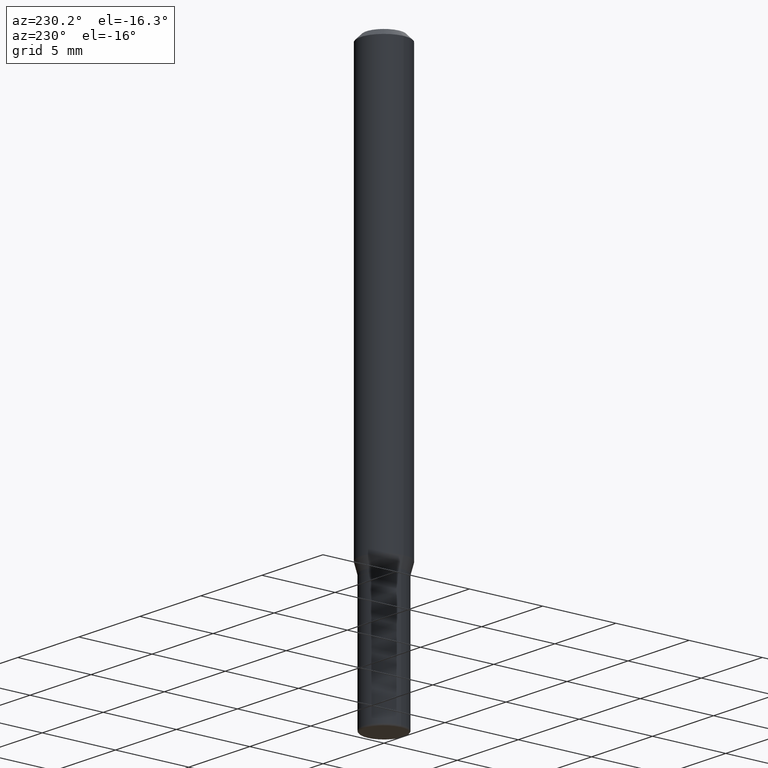
[diagram: clean part render]
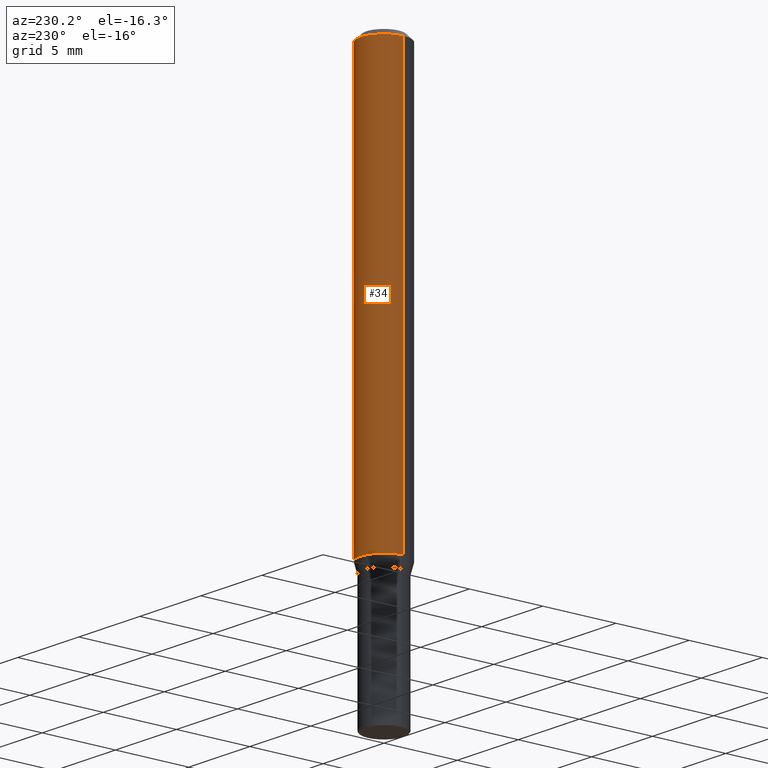
[diagram: same view with one face highlighted and labeled with its STEP entity id]
A machine part, auxiliary view. The second image highlights one B-rep face of the part: STEP entity #34.
In plain terms, the highlighted cylindrical surface (edge-blend (fillet) strip) has radius 1.5875 mm, axis along (-0, 0, 1).
Its self-contained STEP definition (entity closure, byte-faithful):
#31 = AXIS2_PLACEMENT_3D ( 'NONE', #90, #175, #291 ) ;
#34 = ADVANCED_FACE ( 'NONE', ( #248 ), #243, .T. ) ;
#35 = CARTESIAN_POINT ( 'NONE',  ( 0.000000000000000000, 0.000000000000000000, 0.000000000000000000 ) ) ;
#36 = DIRECTION ( 'NONE',  ( 1.000000000000000000, -6.982962677686266711E-15, 4.876176775795935793E-29 ) ) ;
#48 = EDGE_CURVE ( 'NONE', #176, #315, #196, .T. ) ;
#62 = ORIENTED_EDGE ( 'NONE', *, *, #409, .T. ) ;
#65 = EDGE_LOOP ( 'NONE', ( #62, #242, #357, #294 ) ) ;
#79 = DIRECTION ( 'NONE',  ( -2.445468806185136877E-29, 3.491481338843145188E-15, 1.000000000000000000 ) ) ;
#88 = CARTESIAN_POINT ( 'NONE',  ( 0.06250000000000000000, -4.888073874380378612E-16, -0.01499999999999970281 ) ) ;
#90 = CARTESIAN_POINT ( 'NONE',  ( 2.768294211427202327E-29, -3.952390459931242324E-15, -1.132009618943234264 ) ) ;
#110 = CARTESIAN_POINT ( 'NONE',  ( 0.06250000000000000000, -4.364351673553916694E-16, 3.047610484872459871E-30 ) ) ;
#116 = DIRECTION ( 'NONE',  ( -2.445468806185136597E-29, 3.491481338843145583E-15, 1.000000000000000000 ) ) ;
#121 = AXIS2_PLACEMENT_3D ( 'NONE', #35, #361, #36 ) ;
#158 = CARTESIAN_POINT ( 'NONE',  ( -0.06250000000000000000, -1.558292130156881494E-15, -0.01499999999999970281 ) ) ;
#175 = DIRECTION ( 'NONE',  ( -2.445468806185136597E-29, 3.491481338843145583E-15, 1.000000000000000000 ) ) ;
#176 = VERTEX_POINT ( 'NONE', #337 ) ;
#196 = LINE ( 'NONE', #280, #363 ) ;
#204 = VECTOR ( 'NONE', #459, 39.37007874015748143 ) ;
#211 = EDGE_CURVE ( 'NONE', #222, #425, #257, .T. ) ;
#214 = AXIS2_PLACEMENT_3D ( 'NONE', #312, #116, #278 ) ;
#222 = VERTEX_POINT ( 'NONE', #387 ) ;
#242 = ORIENTED_EDGE ( 'NONE', *, *, #48, .T. ) ;
#243 = CYLINDRICAL_SURFACE ( 'NONE', #121, 0.06250000000000000000 ) ;
#248 = FACE_OUTER_BOUND ( 'NONE', #65, .T. ) ;
#257 = LINE ( 'NONE', #110, #204 ) ;
#278 = DIRECTION ( 'NONE',  ( 1.000000000000000000, -6.982962677686266711E-15, 0.000000000000000000 ) ) ;
#280 = CARTESIAN_POINT ( 'NONE',  ( -0.06250000000000000000, 4.440892098500626162E-16, -3.074334431409316114E-30 ) ) ;
#291 = DIRECTION ( 'NONE',  ( 1.000000000000000000, -6.982962677686262766E-15, 0.000000000000000000 ) ) ;
#294 = ORIENTED_EDGE ( 'NONE', *, *, #211, .F. ) ;
#312 = CARTESIAN_POINT ( 'NONE',  ( 3.668203209277632395E-31, -5.237222008264614861E-17, -0.01499999999999970281 ) ) ;
#315 = VERTEX_POINT ( 'NONE', #158 ) ;
#337 = CARTESIAN_POINT ( 'NONE',  ( -0.06250000000000000000, -3.508301250081179708E-15, -1.132009618943234264 ) ) ;
#357 = ORIENTED_EDGE ( 'NONE', *, *, #480, .F. ) ;
#361 = DIRECTION ( 'NONE',  ( -2.445468806185136597E-29, 3.491481338843145583E-15, 1.000000000000000000 ) ) ;
#363 = VECTOR ( 'NONE', #79, 39.37007874015748143 ) ;
#373 = CIRCLE ( 'NONE', #214, 0.06250000000000000000 ) ;
#387 = CARTESIAN_POINT ( 'NONE',  ( 0.06250000000000000000, -4.388825627286634782E-15, -1.132009618943234264 ) ) ;
#406 = CIRCLE ( 'NONE', #31, 0.06250000000000000000 ) ;
#409 = EDGE_CURVE ( 'NONE', #222, #176, #406, .T. ) ;
#425 = VERTEX_POINT ( 'NONE', #88 ) ;
#459 = DIRECTION ( 'NONE',  ( -2.445468806185136877E-29, 3.491481338843145188E-15, 1.000000000000000000 ) ) ;
#480 = EDGE_CURVE ( 'NONE', #425, #315, #373, .T. ) ;